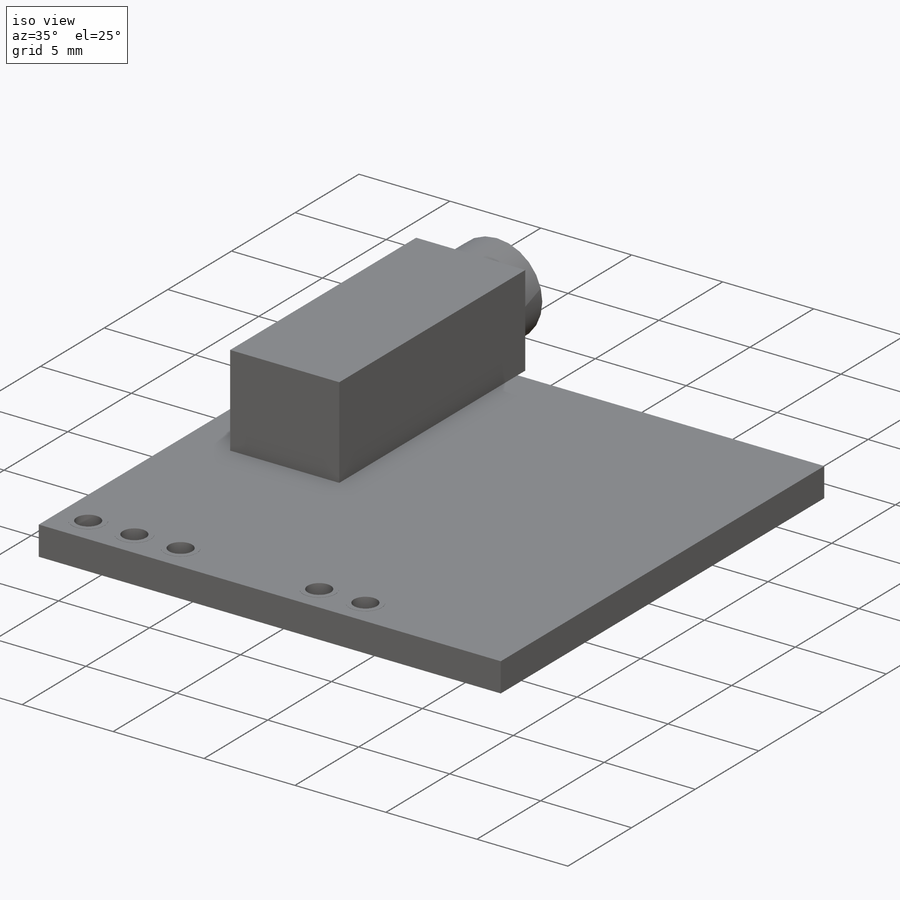
[diagram: iso view]
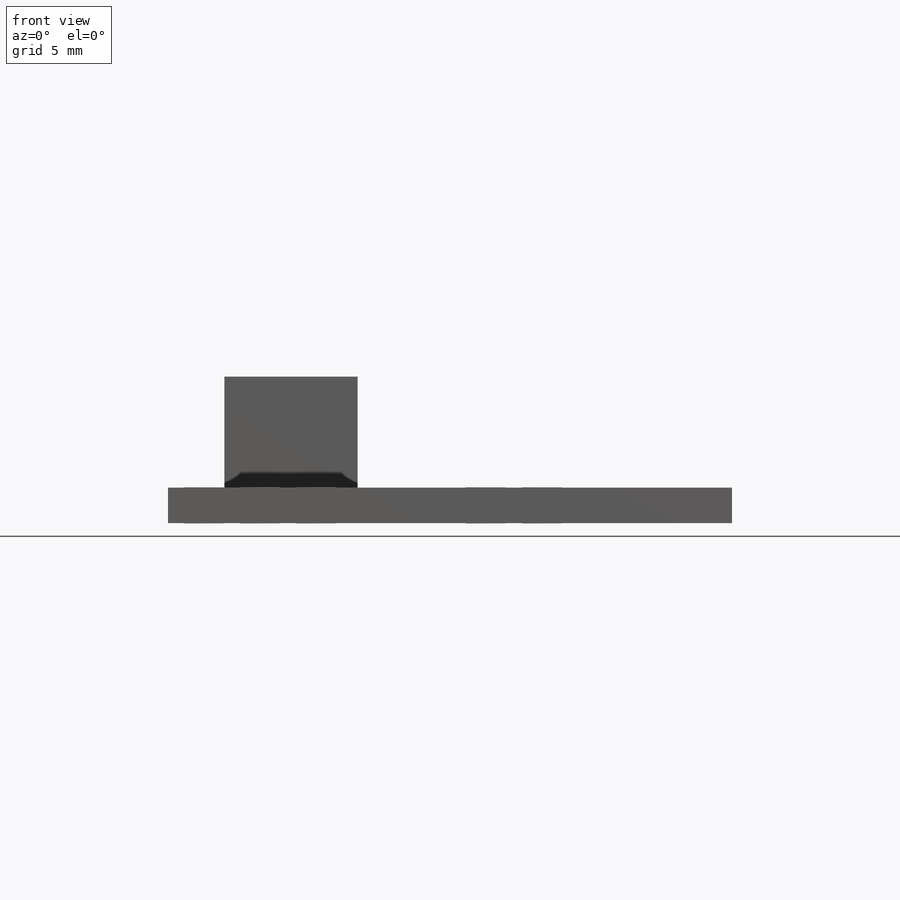
[diagram: front view]
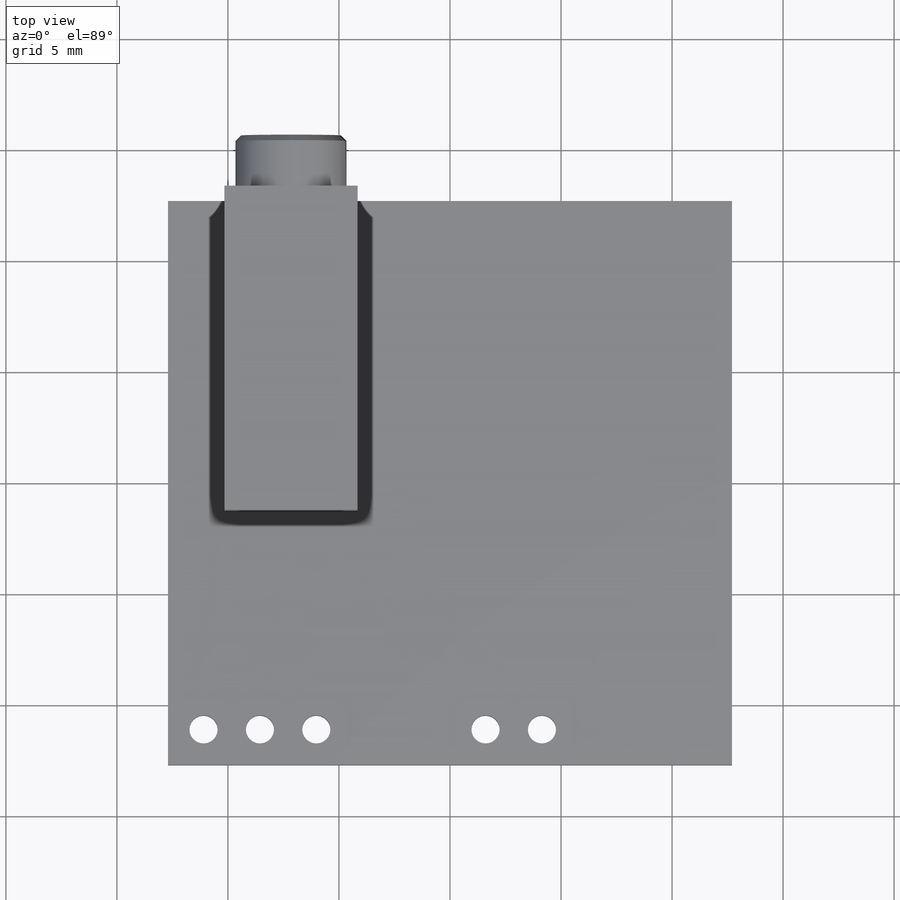
[diagram: top view]
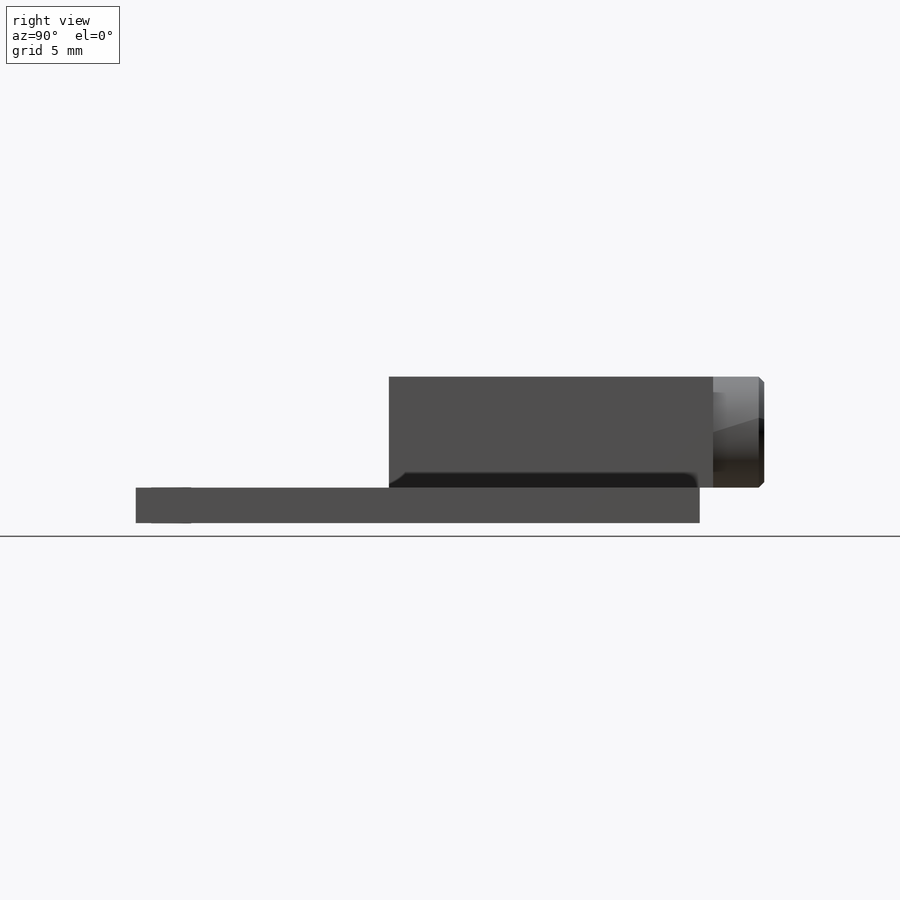
[diagram: right view]
SOLIDWORKS PART (.sldprt)
format: sldprt  version: not decoded by parser v0  size: 324,608 bytes
history: native  units: mm
features: sketch x6, extrude x4, cut_extrude x2, material x1, chamfer x1, mirror x1 (+11 scaffold rows collapsed)
feature tree (26):
  scaffold x11  (default folders/planes/origin — collapsed)
  material  "Material <not specified>"
  sketch  "Sketch1"  dims[D1=25.4mm]
  extrude  "Boss-Extrude1"  Depth=1.6002mm
  sketch  "Sketch2"  dims[c1.D8=1.27mm c1.D2=1.6002mm c1.D3=2.54mm c1.D4=2.54mm c1.D5=1.27mm c1.D6=7.62mm c1.D7=2.54mm c2.D5=23.7998mm c2.D1=0.0mm]
  cut_extrude  "Cut-Extrude1"  Depth=1.6002mm
  sketch  "Sketch3"  dims[D2=6.0mm D3=2.54mm D4=14.605mm D5=14.0mm D1=0.0mm]
  extrude  "Boss-Extrude2"  Depth=5mm
  sketch  "Sketch4"  dims[D2=5.0mm D1=0.0mm]
  extrude  "Boss-Extrude3"  Depth=2.3mm
  sketch  "Sketch5"  dims[D2=3.5mm D1=0.0mm]
  cut_extrude  "Cut-Extrude4"  Depth=1mm
  chamfer  "Chamfer1"  Distance=0.25mm Angle=45deg
  sketch  "Sketch6"  dims[D2=1.8mm D1=0.0mm]
  extrude  "Boss-Extrude4"  Depth=0.01mm
  mirror  "Mirror1"
decode coverage: 13 of 14 modeling features carry decoded parameters
note: suppression state not decoded; provenance and decode notes live in map.json
